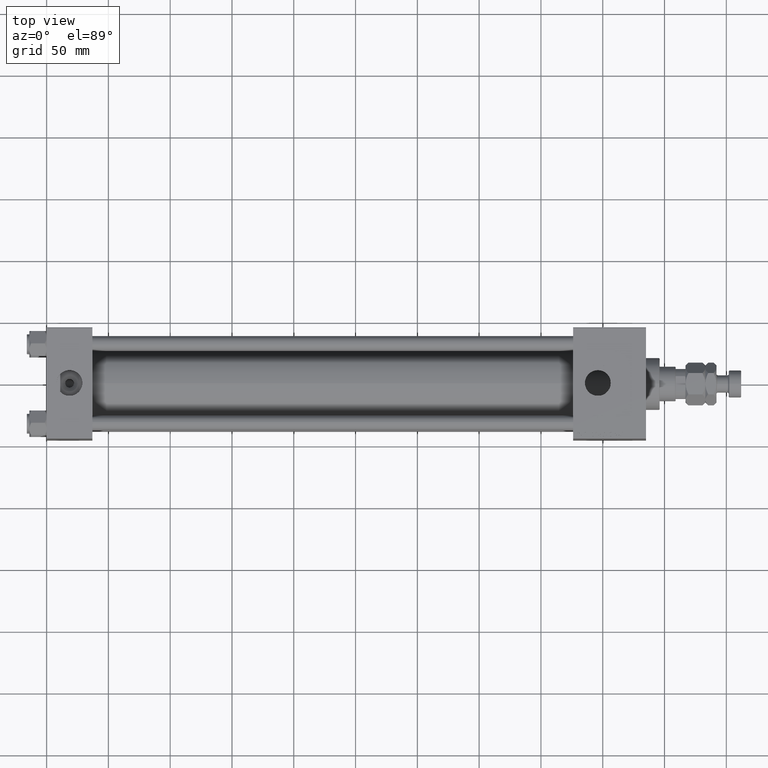
[diagram: clean part render]
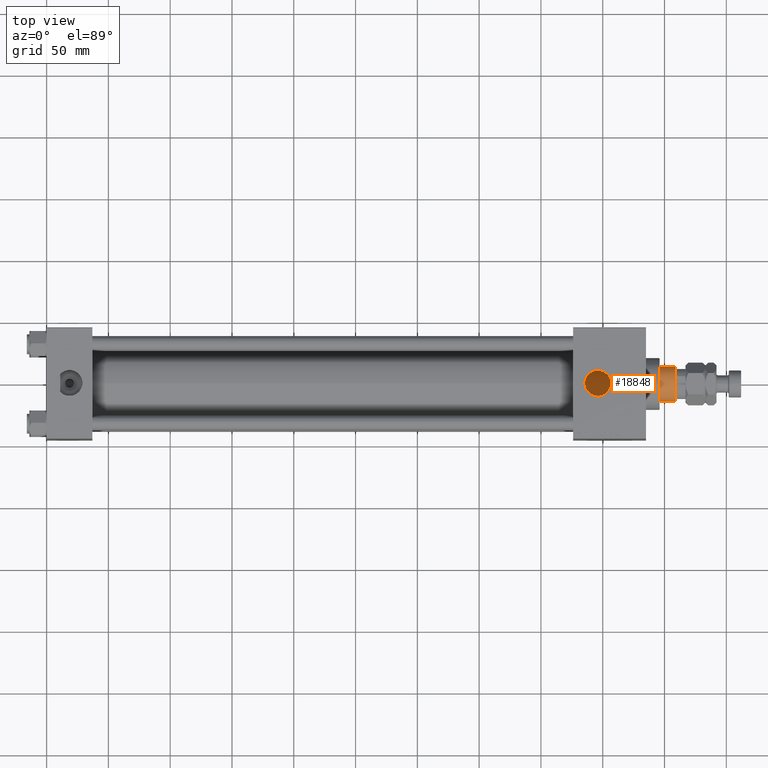
[diagram: same view with one face highlighted and labeled with its STEP entity id]
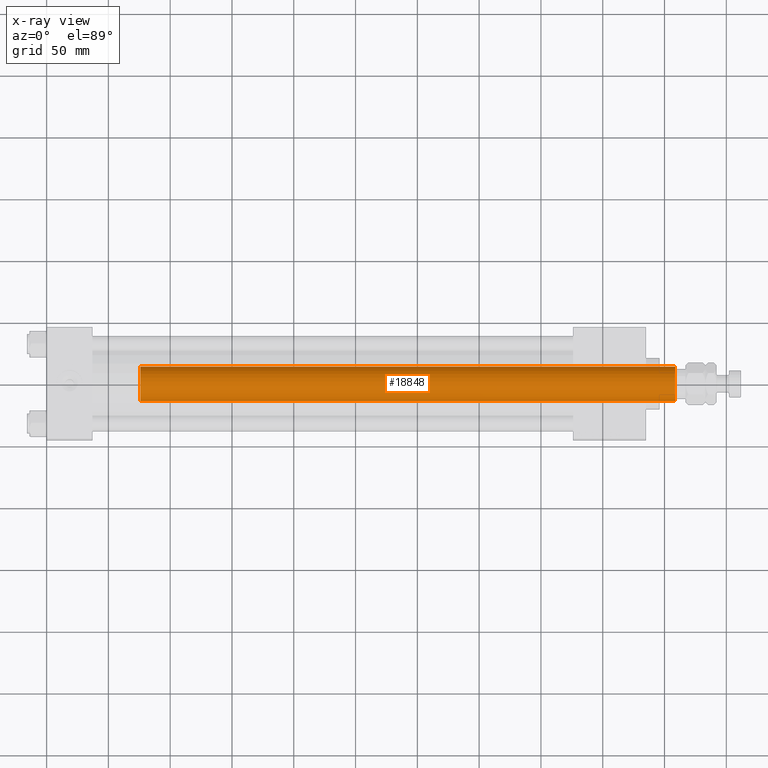
[diagram: x-ray of the same camera — body ghosted, the highlighted face saturated]
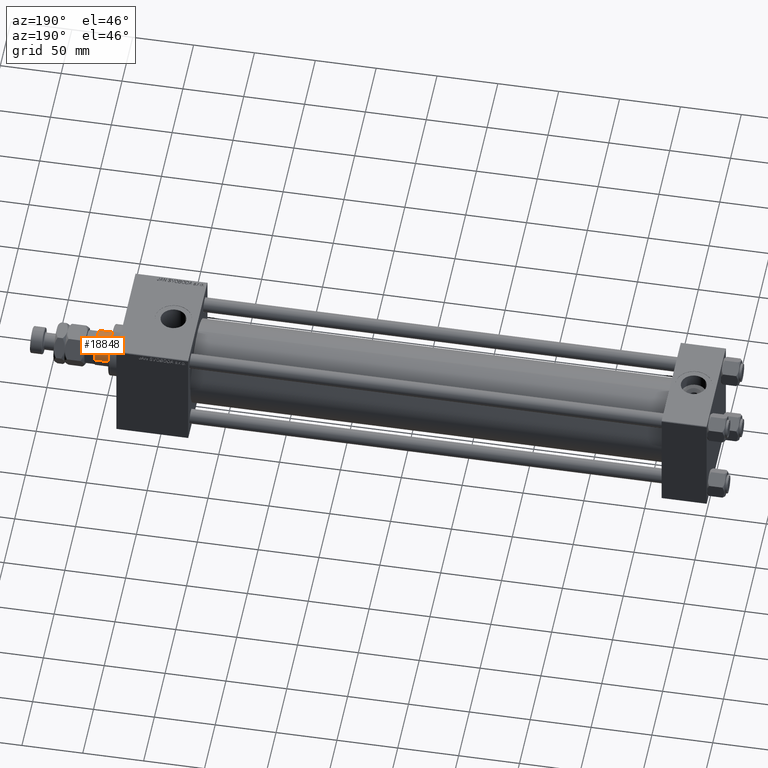
[diagram: same view with one face highlighted and labeled with its STEP entity id]
A machine part, top view. The second image highlights one B-rep face of the part: STEP entity #18848.
The next image is the same camera in x-ray: the body ghosted, the highlighted face saturated — about 0% of this face is hidden behind the body in this view.
A second angle (auxiliary view) of the same face is appended — the face is thin or edge-on in the first view.
In plain terms, the highlighted cylindrical surface (edge-blend (fillet) strip) has radius 14 mm, axis along (-1, 0, 0).
Its self-contained STEP definition (entity closure, byte-faithful):
#1212 = EDGE_CURVE ( 'NONE', #43700, #47310, #15514, .T. ) ;
#2890 = DIRECTION ( 'NONE',  ( 0.000000000000000000, 0.000000000000000000, -1.000000000000000000 ) ) ;
#2898 = VECTOR ( 'NONE', #32357, 1000.000000000000000 ) ;
#3522 = ORIENTED_EDGE ( 'NONE', *, *, #43002, .T. ) ;
#5599 = DIRECTION ( 'NONE',  ( -0.000000000000000000, -0.000000000000000000, -1.000000000000000000 ) ) ;
#7319 = ORIENTED_EDGE ( 'NONE', *, *, #35195, .T. ) ;
#7706 = CARTESIAN_POINT ( 'NONE',  ( 14.00000000000000178, 1.714505518806294441E-15, 471.5000000000001705 ) ) ;
#8817 = DIRECTION ( 'NONE',  ( 0.000000000000000000, 0.000000000000000000, 1.000000000000000000 ) ) ;
#9706 = VECTOR ( 'NONE', #5599, 1000.000000000000000 ) ;
#10800 = DIRECTION ( 'NONE',  ( 1.000000000000000000, 0.000000000000000000, 0.000000000000000000 ) ) ;
#11748 = ORIENTED_EDGE ( 'NONE', *, *, #29361, .T. ) ;
#13531 = VERTEX_POINT ( 'NONE', #48722 ) ;
#15514 = LINE ( 'NONE', #23428, #2898 ) ;
#17164 = DIRECTION ( 'NONE',  ( -0.000000000000000000, -0.000000000000000000, -1.000000000000000000 ) ) ;
#18848 = ADVANCED_FACE ( 'NONE', ( #40864 ), #32171, .T. ) ;
#20455 = VERTEX_POINT ( 'NONE', #23527 ) ;
#21703 = ORIENTED_EDGE ( 'NONE', *, *, #1212, .F. ) ;
#23428 = CARTESIAN_POINT ( 'NONE',  ( 14.00000000000000178, 1.714505518806294441E-15, 472.0000000000000000 ) ) ;
#23527 = CARTESIAN_POINT ( 'NONE',  ( -14.00000000000000178, 0.000000000000000000, 39.00000000000000000 ) ) ;
#23935 = AXIS2_PLACEMENT_3D ( 'NONE', #47796, #8817, #51997 ) ;
#29361 = EDGE_CURVE ( 'NONE', #43700, #13531, #38009, .T. ) ;
#29583 = AXIS2_PLACEMENT_3D ( 'NONE', #50816, #2890, #10800 ) ;
#32171 = CYLINDRICAL_SURFACE ( 'NONE', #50383, 14.00000000000000178 ) ;
#32357 = DIRECTION ( 'NONE',  ( -0.000000000000000000, -0.000000000000000000, -1.000000000000000000 ) ) ;
#34975 = CARTESIAN_POINT ( 'NONE',  ( -14.00000000000000178, 0.000000000000000000, 472.0000000000000000 ) ) ;
#35195 = EDGE_CURVE ( 'NONE', #20455, #47310, #46662, .T. ) ;
#35418 = CARTESIAN_POINT ( 'NONE',  ( 14.00000000000000178, 1.714505518806294441E-15, 39.00000000000000000 ) ) ;
#36379 = CARTESIAN_POINT ( 'NONE',  ( 0.000000000000000000, 0.000000000000000000, 472.0000000000000000 ) ) ;
#36600 = EDGE_LOOP ( 'NONE', ( #21703, #11748, #3522, #7319 ) ) ;
#38009 = CIRCLE ( 'NONE', #29583, 14.00000000000000178 ) ;
#40864 = FACE_OUTER_BOUND ( 'NONE', #36600, .T. ) ;
#43002 = EDGE_CURVE ( 'NONE', #13531, #20455, #50086, .T. ) ;
#43700 = VERTEX_POINT ( 'NONE', #7706 ) ;
#46662 = CIRCLE ( 'NONE', #23935, 14.00000000000000178 ) ;
#47310 = VERTEX_POINT ( 'NONE', #35418 ) ;
#47796 = CARTESIAN_POINT ( 'NONE',  ( 0.000000000000000000, 0.000000000000000000, 39.00000000000000000 ) ) ;
#48722 = CARTESIAN_POINT ( 'NONE',  ( -14.00000000000000178, 0.000000000000000000, 471.5000000000001705 ) ) ;
#49029 = DIRECTION ( 'NONE',  ( -1.000000000000000000, 0.000000000000000000, 0.000000000000000000 ) ) ;
#50086 = LINE ( 'NONE', #34975, #9706 ) ;
#50383 = AXIS2_PLACEMENT_3D ( 'NONE', #36379, #17164, #49029 ) ;
#50816 = CARTESIAN_POINT ( 'NONE',  ( 0.000000000000000000, 0.000000000000000000, 471.5000000000001705 ) ) ;
#51997 = DIRECTION ( 'NONE',  ( 1.000000000000000000, 0.000000000000000000, 0.000000000000000000 ) ) ;